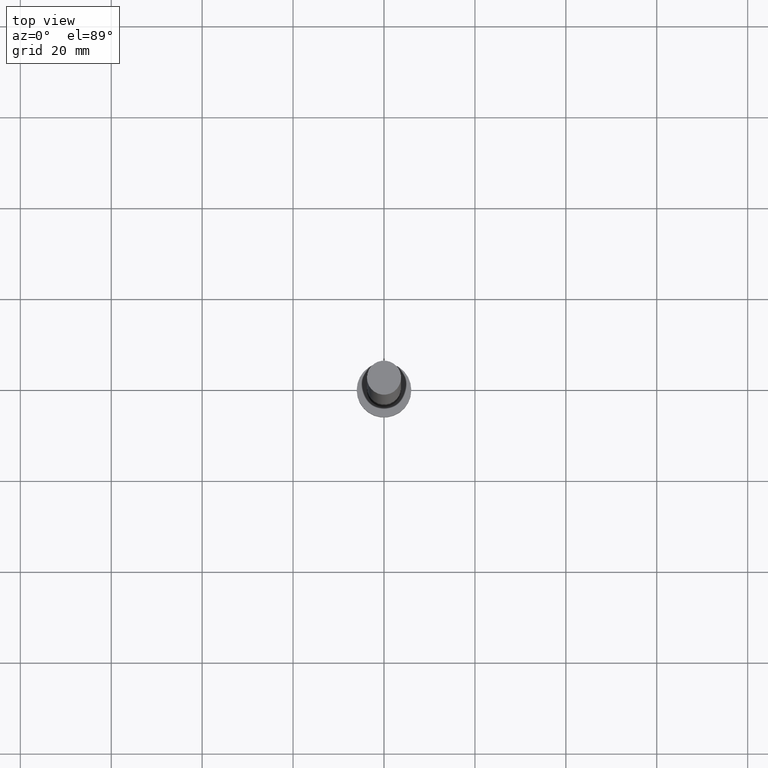
[diagram: clean part render]
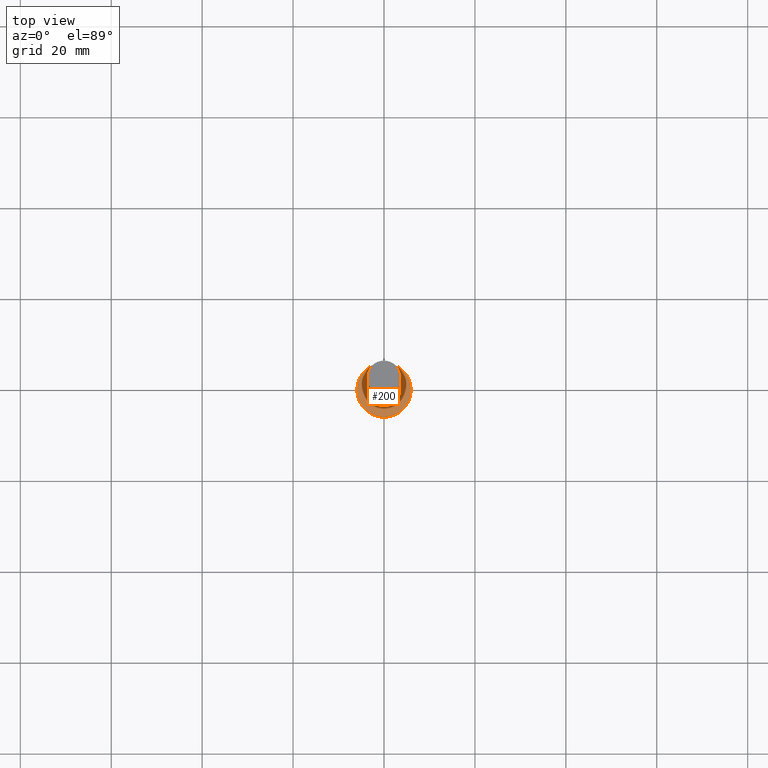
[diagram: same view with one face highlighted and labeled with its STEP entity id]
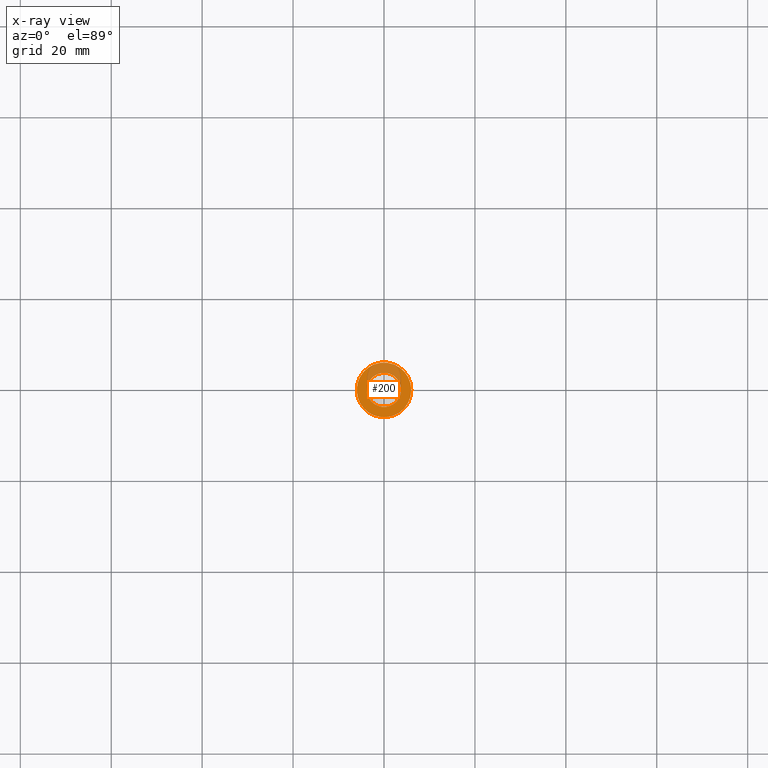
[diagram: x-ray of the same camera — body ghosted, the highlighted face saturated]
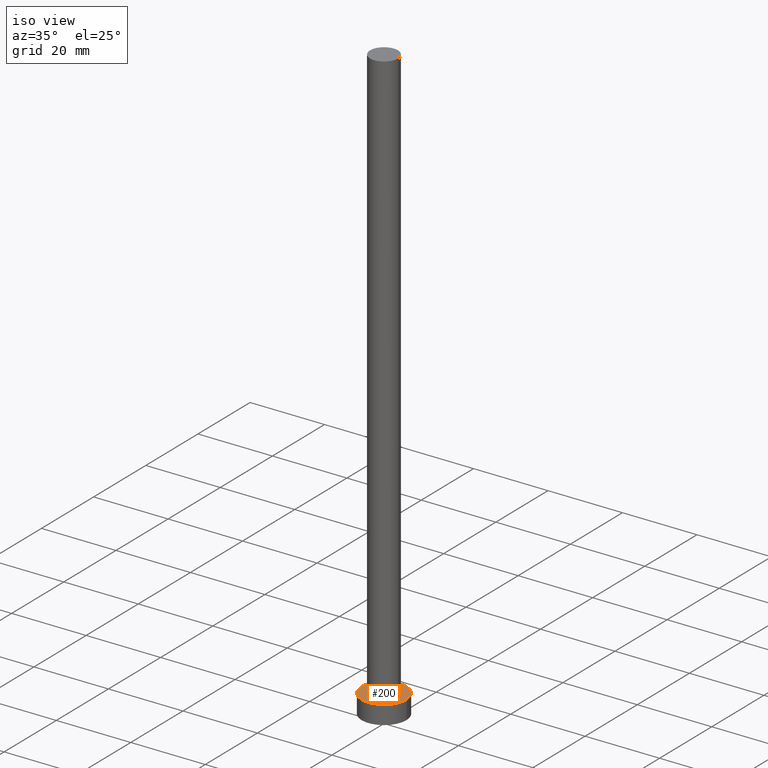
[diagram: same view with one face highlighted and labeled with its STEP entity id]
A machine part, top view. The second image highlights one B-rep face of the part: STEP entity #200.
The next image is the same camera in x-ray: the body ghosted, the highlighted face saturated — about 27% of this face is hidden behind the body in this view.
A second angle (iso view) of the same face is appended — the face is thin or edge-on in the first view.
In plain terms, the highlighted planar face has unit normal (0, 0, 1).
Its self-contained STEP definition (entity closure, byte-faithful):
#10 = DIRECTION ( 'NONE',  ( 1.000000000000000000, 0.000000000000000000, 0.000000000000000000 ) ) ;
#23 = CARTESIAN_POINT ( 'NONE',  ( 6.000000000000000888, 7.347880794884120722E-16, 5.000000000000000000 ) ) ;
#28 = FACE_OUTER_BOUND ( 'NONE', #71, .T. ) ;
#45 = CARTESIAN_POINT ( 'NONE',  ( -3.750000000000000000, 0.000000000000000000, 5.000000000000000000 ) ) ;
#47 = DIRECTION ( 'NONE',  ( 1.000000000000000000, 0.000000000000000000, -0.000000000000000000 ) ) ;
#54 = AXIS2_PLACEMENT_3D ( 'NONE', #129, #190, #10 ) ;
#56 = EDGE_CURVE ( 'NONE', #89, #153, #202, .T. ) ;
#57 = AXIS2_PLACEMENT_3D ( 'NONE', #102, #186, #238 ) ;
#59 = DIRECTION ( 'NONE',  ( 0.000000000000000000, 0.000000000000000000, 1.000000000000000000 ) ) ;
#65 = CARTESIAN_POINT ( 'NONE',  ( 0.000000000000000000, 0.000000000000000000, 5.000000000000000000 ) ) ;
#69 = ORIENTED_EDGE ( 'NONE', *, *, #193, .T. ) ;
#71 = EDGE_LOOP ( 'NONE', ( #69, #248 ) ) ;
#72 = CIRCLE ( 'NONE', #143, 6.000000000000000888 ) ;
#74 = CIRCLE ( 'NONE', #221, 6.000000000000000888 ) ;
#83 = CARTESIAN_POINT ( 'NONE',  ( 3.750000000000000000, 4.592425496802573972E-16, 5.000000000000000000 ) ) ;
#85 = DIRECTION ( 'NONE',  ( 0.000000000000000000, 0.000000000000000000, 1.000000000000000000 ) ) ;
#86 = CARTESIAN_POINT ( 'NONE',  ( 0.000000000000000000, 0.000000000000000000, 5.000000000000000000 ) ) ;
#89 = VERTEX_POINT ( 'NONE', #45 ) ;
#102 = CARTESIAN_POINT ( 'NONE',  ( 0.000000000000000000, 0.000000000000000000, 5.000000000000000000 ) ) ;
#115 = ORIENTED_EDGE ( 'NONE', *, *, #219, .F. ) ;
#124 = EDGE_CURVE ( 'NONE', #151, #252, #72, .T. ) ;
#126 = CARTESIAN_POINT ( 'NONE',  ( 0.000000000000000000, 0.000000000000000000, 5.000000000000000000 ) ) ;
#129 = CARTESIAN_POINT ( 'NONE',  ( 0.000000000000000000, 0.000000000000000000, 5.000000000000000000 ) ) ;
#141 = DIRECTION ( 'NONE',  ( 0.000000000000000000, 0.000000000000000000, 1.000000000000000000 ) ) ;
#143 = AXIS2_PLACEMENT_3D ( 'NONE', #86, #141, #208 ) ;
#151 = VERTEX_POINT ( 'NONE', #23 ) ;
#153 = VERTEX_POINT ( 'NONE', #83 ) ;
#162 = DIRECTION ( 'NONE',  ( 1.000000000000000000, 0.000000000000000000, 0.000000000000000000 ) ) ;
#164 = CARTESIAN_POINT ( 'NONE',  ( -6.000000000000000888, 0.000000000000000000, 5.000000000000000000 ) ) ;
#166 = PLANE ( 'NONE',  #215 ) ;
#169 = CIRCLE ( 'NONE', #54, 3.750000000000000000 ) ;
#186 = DIRECTION ( 'NONE',  ( 0.000000000000000000, 0.000000000000000000, 1.000000000000000000 ) ) ;
#190 = DIRECTION ( 'NONE',  ( 0.000000000000000000, 0.000000000000000000, 1.000000000000000000 ) ) ;
#193 = EDGE_CURVE ( 'NONE', #252, #151, #74, .T. ) ;
#200 = ADVANCED_FACE ( 'NONE', ( #241, #28 ), #166, .T. ) ;
#202 = CIRCLE ( 'NONE', #57, 3.750000000000000000 ) ;
#208 = DIRECTION ( 'NONE',  ( 1.000000000000000000, 0.000000000000000000, 0.000000000000000000 ) ) ;
#214 = EDGE_LOOP ( 'NONE', ( #246, #115 ) ) ;
#215 = AXIS2_PLACEMENT_3D ( 'NONE', #65, #59, #47 ) ;
#219 = EDGE_CURVE ( 'NONE', #153, #89, #169, .T. ) ;
#221 = AXIS2_PLACEMENT_3D ( 'NONE', #126, #85, #162 ) ;
#238 = DIRECTION ( 'NONE',  ( 1.000000000000000000, 0.000000000000000000, 0.000000000000000000 ) ) ;
#241 = FACE_BOUND ( 'NONE', #214, .T. ) ;
#246 = ORIENTED_EDGE ( 'NONE', *, *, #56, .F. ) ;
#248 = ORIENTED_EDGE ( 'NONE', *, *, #124, .T. ) ;
#252 = VERTEX_POINT ( 'NONE', #164 ) ;